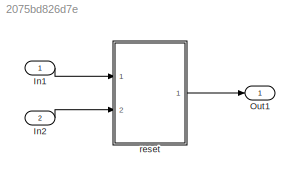
MODEL slx_2075bd826d7e
KIND model
CONFIG AbsTol = auto
CONFIG EnableMultiTasking = off
CONFIG FixedStep = auto
CONFIG MaxStep = auto
CONFIG MinStep = auto
CONFIG RelTol = 1e-3
CONFIG SampleTimeConstraint = Unconstrained
CONFIG Solver = FixedStepDiscrete
CONFIG SolverName = FixedStepDiscrete
CONFIG StartTime = 0.0
CONFIG StopTime = 10.0
BLOCK [Inport] In1
  IconDisplay = Port number
BLOCK [Inport] In2
  IconDisplay = Port number
  Port = 2
BLOCK [Outport] Out1
  IconDisplay = Port number
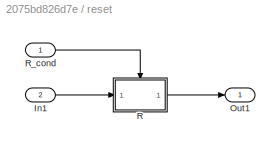
BLOCK [SubSystem] reset
  AncestorBlock = Block_TestLib/reset
  Ports = [2, 1]
  RequestExecContextInheritance = off
  Variant = off
BLOCK [Inport] reset/In1
  IconDisplay = Port number
  Port = 2
BLOCK [Outport] reset/Out1
  IconDisplay = Port number
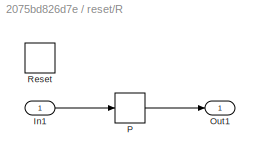
BLOCK [SubSystem] reset/R
  Ports = [1, 1, 0, 0, 0, 0, 0, 0, 1]
  RequestExecContextInheritance = off
  TreatAsAtomicUnit = on
  Variant = off
BLOCK [Inport] reset/R/In1
  IconDisplay = Port number
  PortDimensions = 2
BLOCK [Outport] reset/R/Out1
  IconDisplay = Port number
BLOCK [Lookup_n-D] reset/R/P
  BreakpointsForDimension1FirstPoint = 52.0861
  BreakpointsForDimension1Spacing = 1.5
  BreakpointsForDimension2FirstPoint = 108.8669
  BreakpointsForDimension2Spacing = 1.5
  BreakpointsForDimension3 = [5, 7]
  BreakpointsSpecification = Even spacing
  InternalRulePriority = Speed
  InterpMethod = Flat
  Ports = [1, 1]
  RndMeth = Simplest
  Table = [72.2105693536706 113.872127169376 52.585196284929 74.362227336977 122.993394096973;19.4123549104279 85.7057277634569 83.2562213177174 103.093323114898 36.839766420793;85.169505633284 83.5595624264661 50.5502755470171 86.5962887367263 2.00006489747968]
  UseLastTableValue = on
  UseOneInputPortForAllInputData = on
BLOCK [ResetPort] reset/R/Reset
  DisableCoverage = on
BLOCK [Inport] reset/R_cond
  IconDisplay = Port number
  OutDataTypeStr = boolean
LINE In1:1 -> reset:1
LINE In2:1 -> reset:2
LINE reset:1 -> Out1:1
